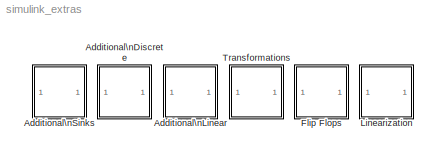
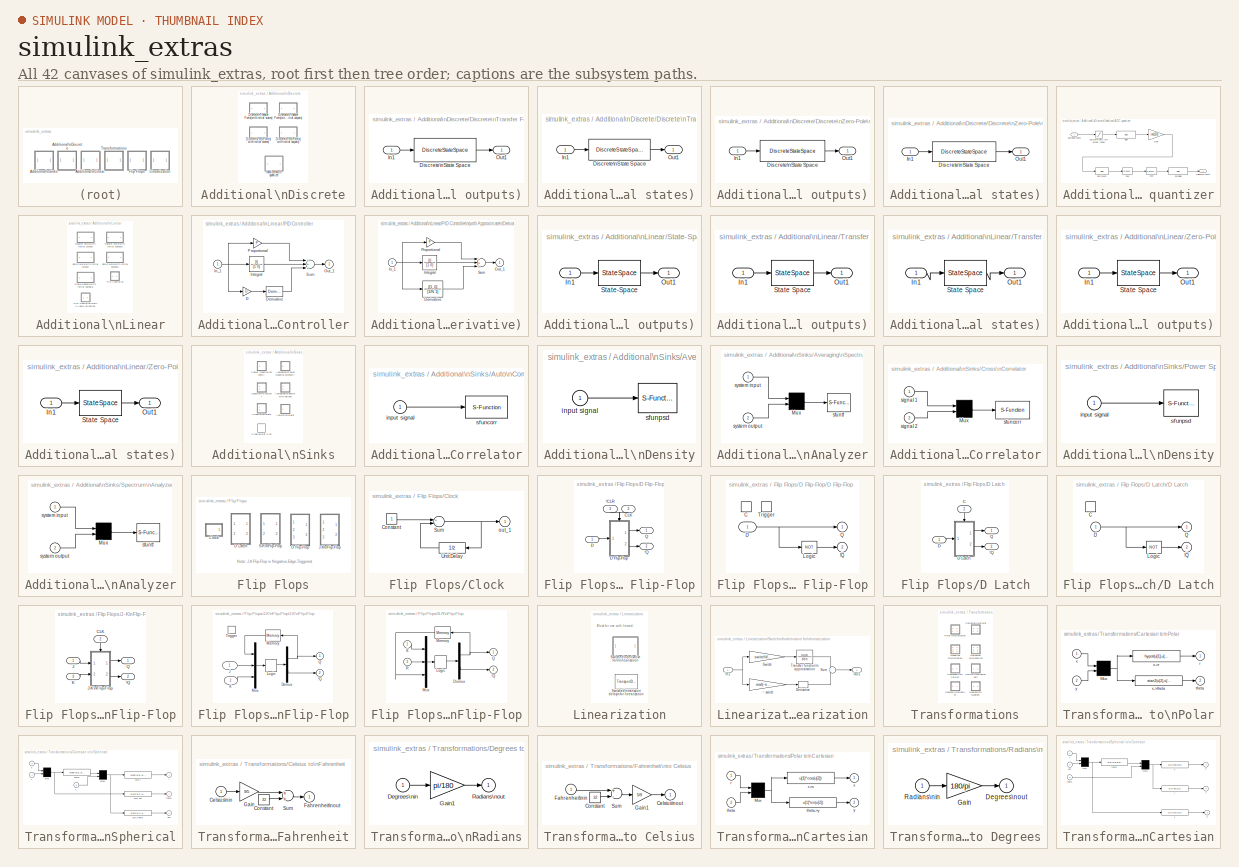
[diagram: thumbnail index - all 42 canvases of the model, root first then tree order]
MODEL simulink_extras
KIND library
CONFIG PostLoadFcn = setsysloc simulink_extras
BLOCK [SubSystem] Additional\nDiscrete
  MaskDisplay = plot([-20 20],[-15 -15],[-15 -15],[-20 20], [ -15  -10  -10 -5 -5  0  0 5 5 10 10 15 15 20],[-10 -10 2  2  13 13 8  8  4  4  1  1  -1 -1])
  MaskIconFrame = on
  MaskIconOpaque = on
  MaskIconRotate = none
  MaskIconUnits = autoscale
  MinAlgLoopOccurrences = off
  Ports = []
  PropExecContextAcrossSSBoundary = on
  RTWSystemCode = Auto
  TreatAsAtomicUnit = off
BLOCK [SubSystem] Additional\nDiscrete/Discrete\nTransfer Fcn\n(with initial outputs)
  MaskCallbackString = ||||
  MaskDescription = Vector expressions for numerator, and denominator. Coefficients are in descending powers of z.
  MaskDisplay = dpoly(N,D,'z')
  MaskEnableString = on,on,on,on,on
  MaskHelp = Specify the initial output for the transfer function.  An optimization routine attempts to determine the appropriate initial states so that the specified initial output is achieved.  For more details, see the m-file getxo.m
  MaskIconFrame = on
  MaskIconOpaque = on
  MaskIconRotate = none
  MaskIconUnits = autoscale
  MaskInitialization = [A,B,C,Dd]=tf2ss(N,D);if (isempty(Y0));[m,n]=size(A);X0=zeros(1,m); end;if (isempty(U0));[m,p]=size(B);U0=zeros(1,p);end;X0=getxo(A,B,C,Dd,U0,Y0,1);
  MaskPromptString = Numerator:|Denominator:|Initial input:|Initial output:|Sample time:
  MaskStyleString = edit,edit,edit,edit,edit
  MaskTabNameString = ,,,,
  MaskToolTipString = on,on,on,on,on
  MaskTunableValueString = on,on,on,on,on
  MaskType = Discrete Transfer Function with Initial Outputs
  MaskValueString = [1]|[1  .5]|[1]|-.5|1
  MaskVarAliasString = ,,,,
  MaskVariables = N=@1;D=@2;U0=@3;Y0=@4;TS=@5;
  MaskVisibilityString = on,on,on,on,on
  MinAlgLoopOccurrences = off
  Ports = [1, 1]
  PropExecContextAcrossSSBoundary = on
  RTWSystemCode = Auto
  TreatAsAtomicUnit = off
BLOCK [DiscreteStateSpace] Additional\nDiscrete/Discrete\nTransfer Fcn\n(with initial outputs)/Discrete\nState Space
  A = A
  B = B
  C = C
  D = Dd
  SampleTime = TS
  X0 = X0
BLOCK [Inport] Additional\nDiscrete/Discrete\nTransfer Fcn\n(with initial outputs)/In1
  IconDisplay = Port number
  LatchInput = off
BLOCK [Outport] Additional\nDiscrete/Discrete\nTransfer Fcn\n(with initial outputs)/Out1
  IconDisplay = Port number
  InitialOutput = 0
BLOCK [SubSystem] Additional\nDiscrete/Discrete\nTransfer Fcn\n(with initial states)
  MaskCallbackString = |||
  MaskDescription = Vector expressions for numerator, and denominator. Coefficients are in descending powers of z.
  MaskDisplay = dpoly(N,D,'z')
  MaskEnableString = on,on,on,on
  MaskHelp = Specify the initial states for the transfer function.  The state ordering is determined by the m-file tf2ss.  There is no unique mapping of the states in a transfer function to states in a state-space representation.  However, tf2ss will consistently use the same mapping for a given transfer function.\n
  MaskIconFrame = on
  MaskIconOpaque = on
  MaskIconRotate = none
  MaskIconUnits = autoscale
  MaskInitialization = [A,B,C,Dd]=tf2ss(N,D);if (isempty(X0));[m,n]=size(A);X0=zeros(1,m); end;
  MaskPromptString = Numerator:|Denominator:|Initial conditions:|Sample time:
  MaskStyleString = edit,edit,edit,edit
  MaskTabNameString = ,,,
  MaskToolTipString = on,on,on,on
  MaskTunableValueString = on,on,on,on
  MaskType = Discrete Transfer Function with Initial States
  MaskValueString = [1]|[1  .5]|[1]|.5
  MaskVarAliasString = ,,,
  MaskVariables = N=@1;D=@2;X0=@3;TS=@4;
  MaskVisibilityString = on,on,on,on
  MinAlgLoopOccurrences = off
  Ports = [1, 1]
  PropExecContextAcrossSSBoundary = on
  RTWSystemCode = Auto
  TreatAsAtomicUnit = off
BLOCK [DiscreteStateSpace] Additional\nDiscrete/Discrete\nTransfer Fcn\n(with initial states)/Discrete\nState Space
  A = A
  B = B
  C = C
  D = Dd
  SampleTime = TS
  X0 = X0
BLOCK [Inport] Additional\nDiscrete/Discrete\nTransfer Fcn\n(with initial states)/In1
  IconDisplay = Port number
  LatchInput = off
BLOCK [Outport] Additional\nDiscrete/Discrete\nTransfer Fcn\n(with initial states)/Out1
  IconDisplay = Port number
  InitialOutput = 0
BLOCK [SubSystem] Additional\nDiscrete/Discrete\nZero-Pole\n(with initial outputs)
  MaskCallbackString = |||||
  MaskDescription = Vector expressions for numerator, denominator, and gain.
  MaskDisplay = droots(Z,P,K,'z')
  MaskEnableString = on,on,on,on,on,on
  MaskHelp = Specify the initial output for the zero-pole-gain system.  An optimization routine attempts to determine the appropriate initial states so that the specified initial output is achieved.  For more details, see the m-file getxo.m
  MaskIconFrame = on
  MaskIconOpaque = on
  MaskIconRotate = none
  MaskIconUnits = autoscale
  MaskInitialization = [A,B,C,D]=zp2ss(Z,P,K);if (isempty(Y0));[m,n]=size(A);X0=zeros(1,m); end;if (isempty(U0));[m,p]=size(B);U0=zeros(1,p);end;X0=getxo(A,B,C,D,U0,Y0,1);
  MaskPromptString = Zeros:|Poles:|Gain:|Initial input:|Initial output:|Sample time:
  MaskStyleString = edit,edit,edit,edit,edit,edit
  MaskTabNameString = ,,,,,
  MaskToolTipString = on,on,on,on,on,on
  MaskTunableValueString = on,on,on,on,on,on
  MaskType = Discrete Zero-Pole with Initial Outputs
  MaskValueString = [1]|[0  .5]|[1]|1|.5|1
  MaskVarAliasString = ,,,,,
  MaskVariables = Z=@1;P=@2;K=@3;U0=@4;Y0=@5;TS=@6;
  MaskVisibilityString = on,on,on,on,on,on
  MinAlgLoopOccurrences = off
  Ports = [1, 1]
  PropExecContextAcrossSSBoundary = on
  RTWSystemCode = Auto
  TreatAsAtomicUnit = off
BLOCK [DiscreteStateSpace] Additional\nDiscrete/Discrete\nZero-Pole\n(with initial outputs)/Discrete\nState Space
  A = A
  B = B
  C = C
  D = D
  SampleTime = TS
  X0 = X0
BLOCK [Inport] Additional\nDiscrete/Discrete\nZero-Pole\n(with initial outputs)/In1
  IconDisplay = Port number
  LatchInput = off
BLOCK [Outport] Additional\nDiscrete/Discrete\nZero-Pole\n(with initial outputs)/Out1
  IconDisplay = Port number
  InitialOutput = 0
BLOCK [SubSystem] Additional\nDiscrete/Discrete\nZero-Pole\n(with initial states)
  MaskCallbackString = ||||
  MaskDescription = Vector expressions for numerator, denominator, and gain.
  MaskDisplay = droots(Z,P,K,'z')
  MaskEnableString = on,on,on,on,on
  MaskHelp = Specify the initial states for the transfer function.  The state ordering is determined by the m-file zp2ss.  There is no unique mapping of the states in a zero-pole-gain representation to states in a state-space representation.  However, zp2ss will consistently use the same mapping for a given transfer function.\n
  MaskIconFrame = on
  MaskIconOpaque = on
  MaskIconRotate = none
  MaskIconUnits = autoscale
  MaskInitialization = [A,B,C,D]=zp2ss(Z,P,K);if (isempty(X0));[m,n]=size(A);X0=zeros(1,m); end;
  MaskPromptString = Zeros:|Poles:|Gain:|Initial conditions:|Sample time:
  MaskStyleString = edit,edit,edit,edit,edit
  MaskTabNameString = ,,,,
  MaskToolTipString = on,on,on,on,on
  MaskTunableValueString = on,on,on,on,on
  MaskType = Discrete Zero-Pole with Initial States
  MaskValueString = [1]|[0  .5]|[1]|1|.5
  MaskVarAliasString = ,,,,
  MaskVariables = Z=@1;P=@2;K=@3;X0=@4;TS=@5;
  MaskVisibilityString = on,on,on,on,on
  MinAlgLoopOccurrences = off
  Ports = [1, 1]
  PropExecContextAcrossSSBoundary = on
  RTWSystemCode = Auto
  TreatAsAtomicUnit = off
BLOCK [DiscreteStateSpace] Additional\nDiscrete/Discrete\nZero-Pole\n(with initial states)/Discrete\nState Space
  A = A
  B = B
  C = C
  D = D
  SampleTime = TS
  X0 = X0
BLOCK [Inport] Additional\nDiscrete/Discrete\nZero-Pole\n(with initial states)/In1
  IconDisplay = Port number
  LatchInput = off
BLOCK [Outport] Additional\nDiscrete/Discrete\nZero-Pole\n(with initial states)/Out1
  IconDisplay = Port number
  InitialOutput = 0
BLOCK [SubSystem] Additional\nDiscrete/Idealized ADC quantizer
  AttributesFormatString = (settings: %<NumberOfConverterBits>-bit converter\\nVmin: %<Vmin>, Vmax: %<Vmax>)
  MaskCallbackString = ||||
  MaskDescription = Idealized quantizer for a linear analog to digital converter.  There are 2^n possible digital output codes for an n-bit converter.   Each value represents an equal fraction of the total analog input range in steps of one least significant bit (1 LSB).  1 LSB is (Vmax - Vmin)/2^bits.  The midpoint of these steps corresponds to the actual value and thus introduce quantization error that is never mor...<+482ch>
  MaskDisplay = plot(steps_x,steps_y)\nplot(line_xy, line_xy)\nport_label('input',1,'A')\nport_label('output',1,'D')\ntext(0.5,0.9,[num2str(NumberOfConverterBits),' bits'],'horizontalalignment','center')
  MaskEnableString = on,on,on,on,on
  MaskHelp = Use this block to model an ideal analog to digital converter.  To model non-ideal converters, it is suggested to use a direct look-up table to represent static errors and dynamic models for transient error sources.  Use a discrete delay of the appropriate duration to model conversion latency if this is a significant value in your application.  If there is an input mux, model this with triggered la...<+43ch>
  MaskIconFrame = on
  MaskIconOpaque = on
  MaskIconRotate = port
  MaskIconUnits = normalized
  MaskInitialization = blk = gcb;\nset_param([blk,'/cast'], 'DataType', OutputDataType);\n\nLSB    = (Vmax - Vmin) / pow2(NumberOfConverterBits);\ninvLSB =  pow2(NumberOfConverterBits) / (Vmax - Vmin);\n\nif OutputNegativeValues ~= 0 && OutputDataType(1) ~= 'u'\n    ZeroBias = -pow2(NumberOfConverterBits-1);\nelse\n	ZeroBias = 0;\nend\n\n% --- icon drawing data\n\nb = 0.10;\nm = 0.20;\nsteps_x = b + m*[0,0.5,0.5,1.5,1.5...<+78ch>
  MaskPromptString = Number of converter bits:|Min input voltage at low output:|Max input voltage at 2^n output (unreachable):|Output data type:|Output negative values
  MaskStyleString = edit,edit,edit,popup(double|single|int8|uint8|int16|uint16|int32|uint32|boolean),checkbox
  MaskTabNameString = ,,,,
  MaskToolTipString = on,on,on,on,on
  MaskTunableValueString = off,off,off,off,off
  MaskType = IdealADC
  MaskValueString = 12|0|5|int16|off
  MaskVarAliasString = ,,,,
  MaskVariables = NumberOfConverterBits=@1;Vmin=@2;Vmax=@3;OutputDataType=&4;OutputNegativeValues=@5;
  MaskVisibilityString = on,on,on,on,on
  MinAlgLoopOccurrences = off
  Ports = [1, 1]
  PropExecContextAcrossSSBoundary = on
  RTWSystemCode = Auto
  TreatAsAtomicUnit = off
BLOCK [Bias] Additional\nDiscrete/Idealized ADC quantizer/Bias
  Bias = -Vmin
  SaturateOnIntegerOverflow = off
BLOCK [Outport] Additional\nDiscrete/Idealized ADC quantizer/Digital\nCounts
  BusOutputAsStruct = off
  IconDisplay = Port number
BLOCK [Gain] Additional\nDiscrete/Idealized ADC quantizer/Gain
  Gain = invLSB
  OutDataTypeMode = Inherit via internal rule
  ParameterDataTypeMode = Inherit via internal rule
  SaturateOnIntegerOverflow = off
BLOCK [Inport] Additional\nDiscrete/Idealized ADC quantizer/Sampled\nVolts
  IconDisplay = Port number
  LatchInput = off
BLOCK [Saturate] Additional\nDiscrete/Idealized ADC quantizer/Saturate volts \nto output range
  AttributesFormatString = Max = %<UpperLimit>\\nMin = %<LowerLimit>
  LowerLimit = Vmin
  UpperLimit = Vmax - (LSB*3/2)
BLOCK [Bias] Additional\nDiscrete/Idealized ADC quantizer/SetRound
  Bias = 0.5
  SaturateOnIntegerOverflow = off
BLOCK [Bias] Additional\nDiscrete/Idealized ADC quantizer/ZeroBias
  Bias = ZeroBias
  SaturateOnIntegerOverflow = off
BLOCK [DataTypeConversion] Additional\nDiscrete/Idealized ADC quantizer/cast
  OutDataTypeMode = int16
  SaturateOnIntegerOverflow = off
BLOCK [Rounding] Additional\nDiscrete/Idealized ADC quantizer/floor
BLOCK [SubSystem] Additional\nLinear
  MaskDisplay = plot([-20 20],[-15 -15],[-15 -15],[-20 20],[-20 20],[-5 18])
  MaskIconFrame = on
  MaskIconOpaque = on
  MaskIconRotate = none
  MaskIconUnits = autoscale
  MinAlgLoopOccurrences = off
  Ports = []
  PropExecContextAcrossSSBoundary = on
  RTWSystemCode = Auto
  TreatAsAtomicUnit = off
BLOCK [SubSystem] Additional\nLinear/PID Controller
  MaskCallbackString = ||
  MaskDescription = Enter expressions for proportional, integral, and derivative terms.\nP+I/s+Ds
  MaskDisplay = disp('PID')
  MaskEnableString = on,on,on
  MaskHelp = This block implements a PID controller where parameters are entered for the Proportional, Integral and Derivative terms. Unmask this block to see how it works. The derivative term is implemented using a true derivative block.
  MaskIconFrame = on
  MaskIconOpaque = on
  MaskIconRotate = none
  MaskIconUnits = autoscale
  MaskPromptString = Proportional:|Integral:|Derivative:
  MaskStyleString = edit,edit,edit
  MaskTabNameString = ,,
  MaskToolTipString = on,on,on
  MaskTunableValueString = on,on,on
  MaskType = PID Controller
  MaskValueString = 1|1|0
  MaskVarAliasString = ,,
  MaskVariables = P=@1;I=@2;D=@3;
  MaskVisibilityString = on,on,on
  MinAlgLoopOccurrences = off
  Ports = [1, 1]
  PropExecContextAcrossSSBoundary = on
  RTWSystemCode = Auto
  TreatAsAtomicUnit = off
BLOCK [Gain] Additional\nLinear/PID Controller/D
  Gain = D
BLOCK [Derivative] Additional\nLinear/PID Controller/Derivative
BLOCK [Inport] Additional\nLinear/PID Controller/In_1
  IconDisplay = Port number
  LatchInput = off
BLOCK [TransferFcn] Additional\nLinear/PID Controller/Integral
  Denominator = [1 0]
  Numerator = [I]
BLOCK [Outport] Additional\nLinear/PID Controller/Out_1
  IconDisplay = Port number
  InitialOutput = 0
BLOCK [Gain] Additional\nLinear/PID Controller/Proportional
  Gain = P
BLOCK [Sum] Additional\nLinear/PID Controller/Sum
  Inputs = +++
  Ports = [3, 1]
BLOCK [SubSystem] Additional\nLinear/PID Controller\n(with Approximate\nDerivative)
  MaskCallbackString = |||
  MaskDescription = Enter Proportional(P), Integral(I), and Derivative(D) and divisor (N) terms.\nP+I/s+Ds/(1/Ns+1)
  MaskDisplay = disp('PID')
  MaskEnableString = on,on,on,on
  MaskHelp = This block implements a PID controller where parameters are entered for the Proportional, Integral and Derivative and divisor terms. Unmask this block to see how it works. The derivative term is implemented using an s/(s/N +1)  transfer function block. Making N large can create a \"stiff\" system.
  MaskIconFrame = on
  MaskIconOpaque = on
  MaskIconRotate = none
  MaskIconUnits = autoscale
  MaskPromptString = Proportional:|Integral:|Derivative:|Derivative divisor(N):
  MaskStyleString = edit,edit,edit,edit
  MaskTabNameString = ,,,
  MaskToolTipString = on,on,on,on
  MaskTunableValueString = on,on,on,on
  MaskType = PID(2) Controller
  MaskValueString = 1|1|0|100
  MaskVarAliasString = ,,,
  MaskVariables = P=@1;I=@2;D=@3;N=@4;
  MaskVisibilityString = on,on,on,on
  MinAlgLoopOccurrences = off
  Ports = [1, 1]
  PropExecContextAcrossSSBoundary = on
  RTWSystemCode = Auto
  TreatAsAtomicUnit = off
BLOCK [TransferFcn] Additional\nLinear/PID Controller\n(with Approximate\nDerivative)/Derivative
  Denominator = [1/N 1]
  Numerator = [D, 0]
BLOCK [Inport] Additional\nLinear/PID Controller\n(with Approximate\nDerivative)/In_1
  IconDisplay = Port number
  LatchInput = off
BLOCK [TransferFcn] Additional\nLinear/PID Controller\n(with Approximate\nDerivative)/Integral
  Denominator = [1 0]
  Numerator = [I]
BLOCK [Outport] Additional\nLinear/PID Controller\n(with Approximate\nDerivative)/Out_1
  IconDisplay = Port number
  InitialOutput = 0
BLOCK [Gain] Additional\nLinear/PID Controller\n(with Approximate\nDerivative)/Proportional
  Gain = P
BLOCK [Sum] Additional\nLinear/PID Controller\n(with Approximate\nDerivative)/Sum
  Inputs = +++
  Ports = [3, 1]
BLOCK [SubSystem] Additional\nLinear/State-Space\n(with initial outputs)
  MaskCallbackString = |||||
  MaskDescription = State-Space model matrices:\ndx/dt = Ax + Bu\ny=Cx +Du
  MaskDisplay = fprintf('x'' = Ax + Bu\\n  y = Cx + Du');
  MaskEnableString = on,on,on,on,on,on
  MaskHelp = Specify an initial output.  An optimization routine is used to attempt to find the steady state x values that satisfy the initial output.  The block states will be initialized to these values.
  MaskIconFrame = on
  MaskIconOpaque = on
  MaskIconRotate = none
  MaskIconUnits = autoscale
  MaskInitialization = if (isempty(Y0));[m,n]=size(A);X0=zeros(1,m); end; if (isempty(U0));[m,p]=size(B);U0=zeros(1,p);end;X0=getxo(A,B,C,D,U0,Y0,0);
  MaskPromptString = A:|B:|C:|D:|Initial inputs:|Initial outputs:
  MaskStyleString = edit,edit,edit,edit,edit,edit
  MaskTabNameString = ,,,,,
  MaskToolTipString = on,on,on,on,on,on
  MaskTunableValueString = on,on,on,on,on,on
  MaskType = State-Space with Initial Outputs
  MaskValueString = [-2.0479 -.4517;-.4517 -3.0295]|[.0591 0]'|[.2641 .8717]|0|1|.5
  MaskVarAliasString = ,,,,,
  MaskVariables = A=@1;B=@2;C=@3;D=@4;U0=@5;Y0=@6;
  MaskVisibilityString = on,on,on,on,on,on
  MinAlgLoopOccurrences = off
  Ports = [1, 1]
  PropExecContextAcrossSSBoundary = on
  RTWSystemCode = Auto
  TreatAsAtomicUnit = off
BLOCK [Inport] Additional\nLinear/State-Space\n(with initial outputs)/In1
  IconDisplay = Port number
  LatchInput = off
BLOCK [Outport] Additional\nLinear/State-Space\n(with initial outputs)/Out1
  IconDisplay = Port number
  InitialOutput = 0
BLOCK [StateSpace] Additional\nLinear/State-Space\n(with initial outputs)/State-Space
  A = A
  B = B
  C = C
  D = D
  X0 = X0
BLOCK [SubSystem] Additional\nLinear/Transfer Fcn\n(with initial outputs)
  MaskCallbackString = |||
  MaskDescription = Vector expressions for numerator, and denominator. Coefficients are in descending powers of s.
  MaskDisplay = dpoly(N,D,'s')
  MaskEnableString = on,on,on,on
  MaskHelp = Specify the initial output for the transfer function.  An optimization routine attempts to determine the appropriate initial states so that the specified initial output is achieved.  For more details, see the m-file getxo.m
  MaskIconFrame = on
  MaskIconOpaque = on
  MaskIconRotate = none
  MaskIconUnits = autoscale
  MaskInitialization = [A,B,C,Dd]=tf2ss(N,D);if (isempty(Y0));[m,n]=size(A);X0=zeros(1,m); end; if (isempty(U0));[m,p]=size(B);U0=zeros(1,p);end;X0=getxo(A,B,C,Dd,U0,Y0,0);\n
  MaskPromptString = Numerator:|Denominator:|Initial output:|Initial input:
  MaskStyleString = edit,edit,edit,edit
  MaskTabNameString = ,,,
  MaskToolTipString = on,on,on,on
  MaskTunableValueString = on,on,on,on
  MaskType = Transfer Function with Initial Outputs
  MaskValueString = [1]|[1  1]|.5|0
  MaskVarAliasString = ,,,
  MaskVariables = N=@1;D=@2;Y0=@3;U0=@4;
  MaskVisibilityString = on,on,on,on
  MinAlgLoopOccurrences = off
  Ports = [1, 1]
  PropExecContextAcrossSSBoundary = on
  RTWSystemCode = Auto
  TreatAsAtomicUnit = off
BLOCK [Inport] Additional\nLinear/Transfer Fcn\n(with initial outputs)/In1
  IconDisplay = Port number
  LatchInput = off
BLOCK [Outport] Additional\nLinear/Transfer Fcn\n(with initial outputs)/Out1
  IconDisplay = Port number
  InitialOutput = 0
BLOCK [StateSpace] Additional\nLinear/Transfer Fcn\n(with initial outputs)/State Space
  A = A
  B = B
  C = C
  D = Dd
  X0 = X0
BLOCK [SubSystem] Additional\nLinear/Transfer Fcn\n(with initial states)
  MaskCallbackString = ||
  MaskDescription = Vector expressions for numerator, and denominator. Coefficients are in descending powers of s.
  MaskDisplay = dpoly(N,D,'s')
  MaskEnableString = on,on,on
  MaskHelp = Specify the initial states for the transfer function.  The state ordering is determined by the m-file tf2ss.  There is no unique mapping of the states in a transfer function to states in a state-space representation.  However, tf2ss will consistently use the same mapping for a given transfer function.\n
  MaskIconFrame = on
  MaskIconOpaque = on
  MaskIconRotate = none
  MaskIconUnits = autoscale
  MaskInitialization = [A,B,C,Dd]=tf2ss(N,D);if (isempty(X0));[m,n]=size(A);X0=zeros(1,m); end;
  MaskPromptString = Numerator:|Denominator:|Initial conditions:
  MaskStyleString = edit,edit,edit
  MaskTabNameString = ,,
  MaskToolTipString = on,on,on
  MaskTunableValueString = on,on,on
  MaskType = Transfer Function with Initial States
  MaskValueString = [1]|[1  1]|.5
  MaskVarAliasString = ,,
  MaskVariables = N=@1;D=@2;X0=@3;
  MaskVisibilityString = on,on,on
  MinAlgLoopOccurrences = off
  Ports = [1, 1]
  PropExecContextAcrossSSBoundary = on
  RTWSystemCode = Auto
  TreatAsAtomicUnit = off
BLOCK [Inport] Additional\nLinear/Transfer Fcn\n(with initial states)/In1
  IconDisplay = Port number
  LatchInput = off
BLOCK [Outport] Additional\nLinear/Transfer Fcn\n(with initial states)/Out1
  IconDisplay = Port number
  InitialOutput = 0
BLOCK [StateSpace] Additional\nLinear/Transfer Fcn\n(with initial states)/State Space
  A = A
  B = B
  C = C
  D = Dd
  X0 = X0
BLOCK [SubSystem] Additional\nLinear/Zero-Pole\n(with initial outputs)
  MaskCallbackString = ||||
  MaskDescription = Vector expressions for numerator, denominator, and gain.
  MaskDisplay = droots(Z,P,K)
  MaskEnableString = on,on,on,on,on
  MaskHelp = Specify the initial output for the zero-pole-gain system.  An optimization routine attempts to determine the appropriate initial states so that the specified initial output is achieved.  For more details, see the m-file getxo.m
  MaskIconFrame = on
  MaskIconOpaque = on
  MaskIconRotate = none
  MaskIconUnits = autoscale
  MaskInitialization = [A,B,C,D]=zp2ss(Z,P,K);if (isempty(Y0));[m,n]=size(A);X0=zeros(1,m); end; if (isempty(U0));[m,p]=size(B);U0=zeros(1,p);end;X0=getxo(A,B,C,D,U0,Y0,0);
  MaskPromptString = Zeros:|Poles:|Gain:|Initial output:|Initial input:
  MaskStyleString = edit,edit,edit,edit,edit
  MaskTabNameString = ,,,,
  MaskToolTipString = on,on,on,on,on
  MaskTunableValueString = on,on,on,on,on
  MaskType = Zero-Pole with Initial Outputs
  MaskValueString = [1]|[0; -1]|[1]|.5|0
  MaskVarAliasString = ,,,,
  MaskVariables = Z=@1;P=@2;K=@3;Y0=@4;U0=@5;
  MaskVisibilityString = on,on,on,on,on
  MinAlgLoopOccurrences = off
  Ports = [1, 1]
  PropExecContextAcrossSSBoundary = on
  RTWSystemCode = Auto
  TreatAsAtomicUnit = off
BLOCK [Inport] Additional\nLinear/Zero-Pole\n(with initial outputs)/In1
  IconDisplay = Port number
  LatchInput = off
BLOCK [Outport] Additional\nLinear/Zero-Pole\n(with initial outputs)/Out1
  IconDisplay = Port number
  InitialOutput = 0
BLOCK [StateSpace] Additional\nLinear/Zero-Pole\n(with initial outputs)/State Space
  A = A
  B = B
  C = C
  D = D
  X0 = X0
BLOCK [SubSystem] Additional\nLinear/Zero-Pole\n(with initial states)
  MaskCallbackString = |||
  MaskDescription = Vector expressions for numerator, denominator, and gain.
  MaskDisplay = droots(Z,P,K)
  MaskEnableString = on,on,on,on
  MaskHelp = Specify the initial states for the transfer function.  The state ordering is determined by the m-file zp2ss.  There is no unique mapping of the states in a zero-pole-gain representation to states in a state-space representation.  However, zp2ss will consistently use the same mapping for a given transfer function.
  MaskIconFrame = on
  MaskIconOpaque = on
  MaskIconRotate = none
  MaskIconUnits = autoscale
  MaskInitialization = [A,B,C,D]=zp2ss(Z,P,K);if (isempty(X0));[m,n]=size(A);X0=zeros(1,m); end;
  MaskPromptString = Zeros:|Poles:|Gain:|Initial conditions:
  MaskStyleString = edit,edit,edit,edit
  MaskTabNameString = ,,,
  MaskToolTipString = on,on,on,on
  MaskTunableValueString = on,on,on,on
  MaskType = Zero-Pole with Initial States
  MaskValueString = [1]|[0; -1]|[1]|.5
  MaskVarAliasString = ,,,
  MaskVariables = Z=@1;P=@2;K=@3;X0=@4;
  MaskVisibilityString = on,on,on,on
  MinAlgLoopOccurrences = off
  Ports = [1, 1]
  PropExecContextAcrossSSBoundary = on
  RTWSystemCode = Auto
  TreatAsAtomicUnit = off
BLOCK [Inport] Additional\nLinear/Zero-Pole\n(with initial states)/In1
  IconDisplay = Port number
  LatchInput = off
BLOCK [Outport] Additional\nLinear/Zero-Pole\n(with initial states)/Out1
  IconDisplay = Port number
  InitialOutput = 0
BLOCK [StateSpace] Additional\nLinear/Zero-Pole\n(with initial states)/State Space
  A = A
  B = B
  C = C
  D = D
  X0 = X0
BLOCK [SubSystem] Additional\nSinks
  MaskDisplay = plot([-1 1 1 -1 1],[ 1 -1 1 -1 1],[14 4 11 4 6],[14 4 6 4 11],[14 4 11 4 6],[-14 -4 -6 -4 -11],[-14 -4 -11 -4 -6],[14 4 6 4 11],[-14 -4 -11 -4 -6],[-14 -4 -6 -4 -11],\n[0 0 3 0 -3],[-20 -5 -10 -5 -10],[0 0 3 0 -3],[20 5 10 5 10],[20 5 10 5 10],[0 0 3 0 -3],[-20 -5 -10 -5 -10],[0 0 3 0 -3])
  MaskIconFrame = on
  MaskIconOpaque = on
  MaskIconRotate = none
  MaskIconUnits = autoscale
  MinAlgLoopOccurrences = off
  Ports = []
  PropExecContextAcrossSSBoundary = on
  RTWSystemCode = Auto
  TreatAsAtomicUnit = off
BLOCK [SubSystem] Additional\nSinks/Auto\nCorrelator
  CopyFcn = sfuncorr([],[],[],'CopyBlock')
  DeleteFcn = sfuncorr([],[],[],'DeleteBlock')
  LoadFcn = sfuncorr([],[],[],'LoadBlock')
  MaskCallbackString = ||
  MaskDescription = Plots the auto correlation of the input.\nRequires signal processing toolbox.
  MaskDisplay = plot(0,0,100,100,[11,93,93,11,11],[90,90,40,40,90],[80,60,40,20],[50,79,50,80])
  MaskEnableString = on,on,on
  MaskHelp = This block when hooked to the output of a system displays the auto correlation of the buffer in the graph window. For more see the M-file sfuncorr.
  MaskIconFrame = on
  MaskIconOpaque = on
  MaskIconRotate = none
  MaskIconUnits = autoscale
  MaskInitialization = ts=sampleT(1); if length(sampleT) > 1, offset = sampleT(2);, else, offset = 0; end
  MaskPromptString = Length of buffer:|Plot after how many points:|Sample time:
  MaskSelfModifiable = on
  MaskStyleString = edit,edit,edit
  MaskTabNameString = ,,
  MaskToolTipString = on,on,on
  MaskTunableValueString = on,on,on
  MaskType = Auto Correlator
  MaskValueString = 100|50|0.1
  MaskVarAliasString = ,,
  MaskVariables = npts=@1;HowOften=@2;sampleT=@3;
  MaskVisibilityString = on,on,on
  MinAlgLoopOccurrences = off
  NameChangeFcn = sfuncorr([],[],[],'NameChange')
  Ports = [1]
  PropExecContextAcrossSSBoundary = on
  RTWSystemCode = Auto
  StartFcn = sfuncorr([],[],[],'Start')
  TreatAsAtomicUnit = off
BLOCK [Inport] Additional\nSinks/Auto\nCorrelator/input signal
  IconDisplay = Port number
  LatchInput = off
BLOCK [S-Function] Additional\nSinks/Auto\nCorrelator/sfuncorr
  FunctionName = sfuncorr
  Parameters = npts,HowOften,offset,ts,0,'unbiased'
  Ports = [1, 1]
BLOCK [SubSystem] Additional\nSinks/Averaging\nPower Spectral\nDensity
  CopyFcn = sfunpsd([],[],[],'CopyBlock')
  DeleteFcn = sfunpsd([],[],[],'DeleteBlock')
  LoadFcn = sfunpsd([],[],[],'LoadBlock')
  MaskCallbackString = |||
  MaskDescription = Plots the averaged PSD of the input.
  MaskDisplay = plot(0,0,100,100,[11,92,92,11,11],[90,90,40,40,90],[82,76,65,57,51,44,35,30,25,20],[65,62,59,63,66,66,67,70,55,50])
  MaskEnableString = on,on,on,on
  MaskHelp = This block when hooked to the output of a system displays the frequency content of the buffer in the graph window. For more see the M-file sfunpsd.
  MaskIconFrame = on
  MaskIconOpaque = on
  MaskIconRotate = none
  MaskIconUnits = autoscale
  MaskInitialization = ts=sampleT(1); if length(sampleT) > 1, offset = sampleT(2);, else, offset = 0; end
  MaskPromptString = Length of buffer:|Number of points for fft:|Plot after how many points:|Sample time:
  MaskSelfModifiable = on
  MaskStyleString = edit,edit,edit,edit
  MaskTabNameString = ,,,
  MaskToolTipString = on,on,on,on
  MaskTunableValueString = on,on,on,on
  MaskType = Averaging Power Spectral Density
  MaskValueString = 128|512|64|0.1
  MaskVarAliasString = ,,,
  MaskVariables = npts=@1;fftpts=@2;HowOften=@3;sampleT=@4;
  MaskVisibilityString = on,on,on,on
  MinAlgLoopOccurrences = off
  NameChangeFcn = sfunpsd([],[],[],'NameChange')
  Ports = [1]
  PropExecContextAcrossSSBoundary = on
  RTWSystemCode = Auto
  StartFcn = sfunpsd([],[],[],'Start')
  TreatAsAtomicUnit = off
BLOCK [Inport] Additional\nSinks/Averaging\nPower Spectral\nDensity/input signal
  IconDisplay = Port number
  LatchInput = off
BLOCK [S-Function] Additional\nSinks/Averaging\nPower Spectral\nDensity/sfunpsd
  FunctionName = sfunpsd
  Parameters = fftpts,npts,HowOften,offset,ts,1
  Ports = [1, 1]
BLOCK [SubSystem] Additional\nSinks/Averaging\nSpectrum\nAnalyzer
  MaskCallbackString = |||
  MaskDescription = Implements an Averaging Spectrum analyzer.\nHook input 1 to system input.\nHook input 2 to system output.
  MaskDisplay = plot(0,0,100,100,[12,92,92,12,12],[90,90,40,40,90],[80,72,63,54,47,40,32,20],[61,61,62,65,69,73,75,75])
  MaskEnableString = on,on,on,on
  MaskHelp = Hook the system's input to the first port of this block and the system's output to second port. Results are displayed as the frequency response of this system. Use signals with high harmonic content for best results.
  MaskIconFrame = on
  MaskIconOpaque = on
  MaskIconRotate = none
  MaskIconUnits = autoscale
  MaskInitialization = ts=sampleT(1); if length(sampleT) > 1, offset = sampleT(2);, else, offset = 0; end
  MaskPromptString = Length of buffer:|Number of points for fft:|Plot after how many points:|Sample time:
  MaskStyleString = edit,edit,edit,edit
  MaskTabNameString = ,,,
  MaskToolTipString = on,on,on,on
  MaskTunableValueString = on,on,on,on
  MaskType = Averaging Spectrum Analyzer
  MaskValueString = 256|256|64|0.1
  MaskVarAliasString = ,,,
  MaskVariables = npts=@1;fftpts=@2;HowOften=@3;sampleT=@4;
  MaskVisibilityString = on,on,on,on
  MinAlgLoopOccurrences = off
  Ports = [2]
  PropExecContextAcrossSSBoundary = on
  RTWSystemCode = Auto
  TreatAsAtomicUnit = off
BLOCK [Mux] Additional\nSinks/Averaging\nSpectrum\nAnalyzer/Mux
  Inputs = 2
  Ports = [2, 1]
BLOCK [S-Function] Additional\nSinks/Averaging\nSpectrum\nAnalyzer/sfuntf
  FunctionName = sfuntf
  Parameters = fftpts,npts,HowOften,offset,ts,1
  Ports = [1, 1]
BLOCK [Inport] Additional\nSinks/Averaging\nSpectrum\nAnalyzer/system input
  IconDisplay = Port number
  LatchInput = off
BLOCK [Inport] Additional\nSinks/Averaging\nSpectrum\nAnalyzer/system output
  IconDisplay = Port number
  LatchInput = off
  Port = 2
BLOCK [SubSystem] Additional\nSinks/Cross\nCorrelator
  CopyFcn = sfuncorr([],[],[],'CopyBlock')
  DeleteFcn = sfuncorr([],[],[],'DeleteBlock')
  LoadFcn = sfuncorr([],[],[],'LoadBlock')
  MaskCallbackString = ||
  MaskDescription = Plots the cross correlation of the input signals.\nRequires signal processing toolbox.
  MaskDisplay = plot(0,0,100,100,[10,92,92,10,10],[90,90,40,40,90],[80,59,40,20],[70,79,70,79],[79,70,59,51,40,30,21],[60,51,60,50,60,50,60])
  MaskEnableString = on,on,on
  MaskHelp = This block when hooked to the outputs of a system displays the cross correlation of the buffer in the graph window. For more see the M-file sfuncorr.
  MaskIconFrame = on
  MaskIconOpaque = on
  MaskIconRotate = none
  MaskIconUnits = autoscale
  MaskInitialization = ts=sampleT(1); if length(sampleT) > 1, offset = sampleT(2);, else, offset = 0; end
  MaskPromptString = Length of buffer:|Plot after how many points:|Sample time:
  MaskSelfModifiable = on
  MaskStyleString = edit,edit,edit
  MaskTabNameString = ,,
  MaskToolTipString = on,on,on
  MaskTunableValueString = on,on,on
  MaskType = Cross Correlator
  MaskValueString = 100|50|0.1
  MaskVarAliasString = ,,
  MaskVariables = npts=@1;HowOften=@2;sampleT=@3;
  MaskVisibilityString = on,on,on
  MinAlgLoopOccurrences = off
  NameChangeFcn = sfuncorr([],[],[],'NameChange')
  Ports = [2]
  PropExecContextAcrossSSBoundary = on
  RTWSystemCode = Auto
  StartFcn = sfuncorr([],[],[],'Start')
  TreatAsAtomicUnit = off
BLOCK [Mux] Additional\nSinks/Cross\nCorrelator/Mux
  Inputs = 2
  Ports = [2, 1]
BLOCK [S-Function] Additional\nSinks/Cross\nCorrelator/sfuncorr
  FunctionName = sfuncorr
  Parameters = npts,HowOften,offset,ts,1,'unbiased'
  Ports = [1, 1]
BLOCK [Inport] Additional\nSinks/Cross\nCorrelator/signal 1
  IconDisplay = Port number
  LatchInput = off
BLOCK [Inport] Additional\nSinks/Cross\nCorrelator/signal 2
  IconDisplay = Port number
  LatchInput = off
  Port = 2
BLOCK [S-Function] Additional\nSinks/Floating Bar Plot
  DeleteFcn = barplotm([],'DeleteFcn')
  FunctionName = barplot
  MaskDescription = Displays selected signals as bar plot while the simulation is running (i.e., click on signal lines to see their values displayed).  To select multiple signals use shift-click.  Each signal is displayed in its own axes, using the corresponding set of Y-Limits.
  MaskDisplay = plot(x,y);
  MaskEnableString = on
  MaskHelp = Displays selected signal values (click on signal) as bar plot while the simulation is running.  To select multiple signals use shift-click.  Each signal (selected line) is displayed in it's own axes.  The 1stY-Limits pair is used for the 1st axes, the 2nd for the 2nd axes, etc.   If there are more axes, than Y-Limits pairs, the last Y-Limits pair is used.
  MaskIconFrame = on
  MaskIconOpaque = on
  MaskIconRotate = none
  MaskIconUnits = normalized
  MaskInitialization = x=[0.1 0.1 0.2 0.2 0.3 0.3 0.4 0.4 0.5 0.5 0.6 0.6 0.7 0.7 0.8 0.8 0.1];\ny=[0.0 0.6 0.6 0.0 0.0 0.8 0.8 0.0 0.0 0.9 0.9 0.0 0.0 0.4 0.4 0.0 0.0];\n
  MaskPromptString = Y-Limits
  MaskStyleString = edit
  MaskToolTipString = on
  MaskTunableValueString = on
  MaskType = Floating Bar Plot
  MaskValueString = [-6 6  -5 5  -5 5  -5 5  -5 5  -5 5  -5 5  -5 5  -5 5  -5 5  -5 5]
  MaskVariables = yLim=@1;
  MaskVisibilityString = on
  NameChangeFcn = barplotm([],'NameChangeFcn')
  Parameters = yLim
  Ports = []
BLOCK [SubSystem] Additional\nSinks/Power Spectral\nDensity
  CopyFcn = sfunpsd([],[],[],'CopyBlock')
  DeleteFcn = sfunpsd([],[],[],'DeleteBlock')
  LoadFcn = sfunpsd([],[],[],'LoadBlock')
  MaskCallbackString = |||
  MaskDescription = Plot the PSD of the input.
  MaskDisplay = plot(0,0,100,100,[14,91,91,14,14],[86,86,40,40,86],[85,82,80,79,75,67,63,60,57,53,41,36,33,27,24],[49,50,53,50,49,51,54,66,54,50,50,52,81,51,49])
  MaskEnableString = on,on,on,on
  MaskHelp = This block when hooked to the output of a system displays the frequency content of the buffer in the graph window. For more see the M-file sfunpsd.
  MaskIconFrame = on
  MaskIconOpaque = on
  MaskIconRotate = none
  MaskIconUnits = autoscale
  MaskInitialization = ts=sampleT(1); if length(sampleT) > 1, offset = sampleT(2);, else, offset = 0; end
  MaskPromptString = Length of buffer:|Number of points for fft:|Plot after how many points:|Sample time:
  MaskSelfModifiable = on
  MaskStyleString = edit,edit,edit,edit
  MaskTabNameString = ,,,
  MaskToolTipString = on,on,on,on
  MaskTunableValueString = on,on,on,on
  MaskType = Power Spectral Density
  MaskValueString = 128|512|64|0.1
  MaskVarAliasString = ,,,
  MaskVariables = npts=@1;fftpts=@2;HowOften=@3;sampleT=@4;
  MaskVisibilityString = on,on,on,on
  MinAlgLoopOccurrences = off
  NameChangeFcn = sfunpsd([],[],[],'NameChange')
  Ports = [1]
  PropExecContextAcrossSSBoundary = on
  RTWSystemCode = Auto
  StartFcn = sfunpsd([],[],[],'Start')
  TreatAsAtomicUnit = off
BLOCK [Inport] Additional\nSinks/Power Spectral\nDensity/input signal
  IconDisplay = Port number
  LatchInput = off
BLOCK [S-Function] Additional\nSinks/Power Spectral\nDensity/sfunpsd
  FunctionName = sfunpsd
  Parameters = fftpts,npts,HowOften,offset,ts,0
  Ports = [1, 1]
BLOCK [SubSystem] Additional\nSinks/Spectrum\nAnalyzer
  MaskCallbackString = |||
  MaskDescription = Implements a Spectrum Analyzer.\nHook input 1 to system input.\nHook input 2 to system output.
  MaskDisplay = plot(0,0,100,100,[11,93,93,11,11],[90,90,40,40,90],[90,80,72,64,55,45,41,36,20],[50,50,52,59,67,75,78,80,80])
  MaskEnableString = on,on,on,on
  MaskHelp = Hook the system's input to the first port of this block and the system's output to second port. Results are displayed as the frequency response of this system. Use signals with high harmonic content for best results.
  MaskIconFrame = on
  MaskIconOpaque = on
  MaskIconRotate = none
  MaskIconUnits = autoscale
  MaskInitialization = ts=sampleT(1); if length(sampleT) > 1, offset = sampleT(2);, else, offset = 0; end
  MaskPromptString = Length of buffer:|Number of points for fft:|Plot after how many points:|Sample time:
  MaskStyleString = edit,edit,edit,edit
  MaskTabNameString = ,,,
  MaskToolTipString = on,on,on,on
  MaskTunableValueString = on,on,on,on
  MaskType = Spectrum Analyzer
  MaskValueString = 256|256|64|0.1
  MaskVarAliasString = ,,,
  MaskVariables = npts=@1;fftpts=@2;HowOften=@3;sampleT=@4;
  MaskVisibilityString = on,on,on,on
  MinAlgLoopOccurrences = off
  Ports = [2]
  PropExecContextAcrossSSBoundary = on
  RTWSystemCode = Auto
  TreatAsAtomicUnit = off
BLOCK [Mux] Additional\nSinks/Spectrum\nAnalyzer/Mux
  Inputs = 2
  Ports = [2, 1]
BLOCK [S-Function] Additional\nSinks/Spectrum\nAnalyzer/sfuntf
  FunctionName = sfuntf
  Parameters = fftpts,npts,HowOften,offset,ts,0
  Ports = [1, 1]
BLOCK [Inport] Additional\nSinks/Spectrum\nAnalyzer/system input
  IconDisplay = Port number
  LatchInput = off
BLOCK [Inport] Additional\nSinks/Spectrum\nAnalyzer/system output
  IconDisplay = Port number
  LatchInput = off
  Port = 2
BLOCK [SubSystem] Flip Flops
  MinAlgLoopOccurrences = off
  Ports = []
  PropExecContextAcrossSSBoundary = on
  RTWSystemCode = Auto
  TreatAsAtomicUnit = off
BLOCK [SubSystem] Flip Flops/Clock
  MaskDescription = Digital clock.\nOutput is set to 1 for the first half of the period.
  MaskDisplay = plot(0,0,100,100,[90,75,75,60,60,35,35,20,20,10],[20,20,80,80,19,20,80,80,20,20])
  MaskEnableString = on
  MaskHelp = Digital clock for logic systems.
  MaskIconFrame = on
  MaskIconOpaque = on
  MaskIconRotate = none
  MaskIconUnits = autoscale
  MaskInitialization = duration = @1/2;
  MaskPromptString = Period:
  MaskStyleString = edit
  MaskToolTipString = on
  MaskTunableValueString = on
  MaskType = Digital clock
  MaskValueString = 2
  MaskVisibilityString = on
  MinAlgLoopOccurrences = off
  Ports = [0, 1]
  PropExecContextAcrossSSBoundary = on
  RTWSystemCode = Auto
  TreatAsAtomicUnit = off
BLOCK [Constant] Flip Flops/Clock/Constant
BLOCK [Sum] Flip Flops/Clock/Sum
  Inputs = +-
  Ports = [2, 1]
BLOCK [UnitDelay] Flip Flops/Clock/Unit Delay
  SampleTime = duration
BLOCK [Outport] Flip Flops/Clock/out_1
  IconDisplay = Port number
  InitialOutput = 0
BLOCK [SubSystem] Flip Flops/D Flip-Flop
  MaskDescription = D Flip-Flop Block
  MaskHelp = The D flip-flop block has the following characteristic table:\n<pre>\n  Q(t)  D(t)     Q(tnext)\n  ------------------------\n   0      0       0\n   0      1       1\n   1      0       0\n   1      1       1\n</pre>\nQ(tnext) refers to the output on a clock pulse (CLK) rising edge and when the\nchip is enabled (!CLR ~= 0).\n<br><br>\nThe D flip-flop transfers \"data\" into a memory element (flip-f...<+212ch>
  MaskIconFrame = on
  MaskIconOpaque = on
  MaskIconRotate = none
  MaskIconUnits = autoscale
  MaskType = DFlipFlop
  MinAlgLoopOccurrences = off
  Ports = [3, 2]
  PropExecContextAcrossSSBoundary = on
  RTWSystemCode = Auto
  TreatAsAtomicUnit = off
BLOCK [Inport] Flip Flops/D Flip-Flop/!CLR
  IconDisplay = Port number
  LatchInput = off
  Port = 3
BLOCK [Outport] Flip Flops/D Flip-Flop/!Q
  IconDisplay = Port number
  InitialOutput = 1
  Port = 2
BLOCK [Inport] Flip Flops/D Flip-Flop/CLK
  IconDisplay = Port number
  LatchInput = off
  Port = 2
BLOCK [Inport] Flip Flops/D Flip-Flop/D
  IconDisplay = Port number
  LatchInput = off
BLOCK [SubSystem] Flip Flops/D Flip-Flop/D Flip-Flop
  MinAlgLoopOccurrences = off
  Ports = [1, 2, 1, 1]
  PropExecContextAcrossSSBoundary = on
  RTWSystemCode = Auto
  TreatAsAtomicUnit = on
BLOCK [Outport] Flip Flops/D Flip-Flop/D Flip-Flop/!Q
  IconDisplay = Port number
  InitialOutput = 1
  OutputWhenDisabled = reset
  Port = 2
BLOCK [EnablePort] Flip Flops/D Flip-Flop/D Flip-Flop/C
  Ports = []
BLOCK [Inport] Flip Flops/D Flip-Flop/D Flip-Flop/D
  IconDisplay = Port number
  LatchInput = on
BLOCK [Logic] Flip Flops/D Flip-Flop/D Flip-Flop/Logic
  Inputs = 1
  Operator = NOT
  Ports = [1, 1]
BLOCK [Outport] Flip Flops/D Flip-Flop/D Flip-Flop/Q
  IconDisplay = Port number
  InitialOutput = 0
  OutputWhenDisabled = reset
BLOCK [TriggerPort] Flip Flops/D Flip-Flop/D Flip-Flop/Trigger
  Ports = []
  StatesWhenEnabling = reset
BLOCK [Outport] Flip Flops/D Flip-Flop/Q
  IconDisplay = Port number
  InitialOutput = 0
BLOCK [SubSystem] Flip Flops/D Latch
  MaskDescription = D Latch Flip-Flop Block
  MaskHelp = The D latch flip-flop block has the following characteristic table:\n<pre>\n  Q(t)  D(t)     Q(tnext)\n  ------------------------\n   0      0       0\n   0      1       1\n   1      0       0\n   1      1       1\n</pre>\nThe D latch transfers \"data\" into a memory element (flip-flop).  The D latch\nflip-flop is sometimes called a gated D-latch. The chip enable input signal, C,\nis sometimes giv...<+126ch>
  MaskIconFrame = on
  MaskIconOpaque = on
  MaskIconRotate = none
  MaskIconUnits = autoscale
  MaskType = DLatch
  MinAlgLoopOccurrences = off
  Ports = [2, 2]
  PropExecContextAcrossSSBoundary = on
  RTWSystemCode = Auto
  TreatAsAtomicUnit = off
BLOCK [Outport] Flip Flops/D Latch/!Q
  IconDisplay = Port number
  InitialOutput = 1
  Port = 2
BLOCK [Inport] Flip Flops/D Latch/C
  IconDisplay = Port number
  LatchInput = off
  Port = 2
BLOCK [Inport] Flip Flops/D Latch/D
  IconDisplay = Port number
  LatchInput = off
BLOCK [SubSystem] Flip Flops/D Latch/D Latch
  MinAlgLoopOccurrences = off
  Ports = [1, 2, 1]
  PropExecContextAcrossSSBoundary = on
  RTWSystemCode = Auto
  TreatAsAtomicUnit = on
BLOCK [Outport] Flip Flops/D Latch/D Latch/!Q
  IconDisplay = Port number
  InitialOutput = 1
  Port = 2
BLOCK [EnablePort] Flip Flops/D Latch/D Latch/C
  Ports = []
BLOCK [Inport] Flip Flops/D Latch/D Latch/D
  IconDisplay = Port number
  LatchInput = off
BLOCK [Logic] Flip Flops/D Latch/D Latch/Logic
  Inputs = 1
  Operator = NOT
  Ports = [1, 1]
BLOCK [Outport] Flip Flops/D Latch/D Latch/Q
  IconDisplay = Port number
  InitialOutput = 0
BLOCK [Outport] Flip Flops/D Latch/Q
  IconDisplay = Port number
  InitialOutput = 0
BLOCK [SubSystem] Flip Flops/J-K\nFlip-Flop
  MaskDescription = J-K Flip-Flop Block (Negative Edge Triggered)
  MaskEnableString = on
  MaskHelp = The J-K flip-flop block has the following characteristic table\n<pre>\n  Q(t)  J(t)  K(t)   Q(tnext)\n  ---------------------------\n   0     0     0      0\n   0     0     1      0\n   0     1     0      1\n   0     1     1      1\n   1     0     0      1\n   1     0     1      0\n   1     1     0      1\n   1     1     1      0\n</pre>\nThe JK flip-flop transfers \"data\" into a memory element (...<+138ch>
  MaskIconFrame = on
  MaskIconOpaque = on
  MaskIconRotate = none
  MaskIconUnits = autoscale
  MaskPromptString = Initial condition (state of Q):
  MaskStyleString = edit
  MaskToolTipString = on
  MaskTunableValueString = on
  MaskType = JKFlipFlop
  MaskValueString = 0
  MaskVariables = initial_condition=@1;
  MaskVisibilityString = on
  MinAlgLoopOccurrences = off
  Ports = [3, 2]
  PropExecContextAcrossSSBoundary = on
  RTWSystemCode = Auto
  TreatAsAtomicUnit = off
BLOCK [Outport] Flip Flops/J-K\nFlip-Flop/!Q
  IconDisplay = Port number
  Port = 2
BLOCK [Inport] Flip Flops/J-K\nFlip-Flop/CLK
  IconDisplay = Port number
  LatchInput = off
  Port = 2
BLOCK [Inport] Flip Flops/J-K\nFlip-Flop/J
  IconDisplay = Port number
  LatchInput = off
BLOCK [SubSystem] Flip Flops/J-K\nFlip-Flop/J-K\nFlip-Flop
  MinAlgLoopOccurrences = off
  Ports = [2, 2, 0, 1]
  PropExecContextAcrossSSBoundary = on
  RTWSystemCode = Auto
  TreatAsAtomicUnit = on
BLOCK [Outport] Flip Flops/J-K\nFlip-Flop/J-K\nFlip-Flop/!Q
  IconDisplay = Port number
  InitialOutput = ~initial_condition
  Port = 2
BLOCK [Demux] Flip Flops/J-K\nFlip-Flop/J-K\nFlip-Flop/Demux
  Outputs = 2
  Ports = [1, 2]
BLOCK [Inport] Flip Flops/J-K\nFlip-Flop/J-K\nFlip-Flop/J
  IconDisplay = Port number
  LatchInput = on
BLOCK [Inport] Flip Flops/J-K\nFlip-Flop/J-K\nFlip-Flop/K
  IconDisplay = Port number
  LatchInput = on
  Port = 2
BLOCK [CombinatorialLogic] Flip Flops/J-K\nFlip-Flop/J-K\nFlip-Flop/Logic
  TruthTable = [0 1; 0 1; 1 0; 1 0; 1 0; 0 1; 1 0; 0 1]
BLOCK [Memory] Flip Flops/J-K\nFlip-Flop/J-K\nFlip-Flop/Memory
  InheritSampleTime = on
  X0 = initial_condition
BLOCK [Mux] Flip Flops/J-K\nFlip-Flop/J-K\nFlip-Flop/Mux
  DisplayOption = bar
  Inputs = 3
  Ports = [3, 1]
BLOCK [Outport] Flip Flops/J-K\nFlip-Flop/J-K\nFlip-Flop/Q
  IconDisplay = Port number
  InitialOutput = initial_condition
BLOCK [TriggerPort] Flip Flops/J-K\nFlip-Flop/J-K\nFlip-Flop/Trigger
  Ports = []
  StatesWhenEnabling = reset
  TriggerType = falling
BLOCK [Inport] Flip Flops/J-K\nFlip-Flop/K
  IconDisplay = Port number
  LatchInput = off
  Port = 3
BLOCK [Outport] Flip Flops/J-K\nFlip-Flop/Q
  IconDisplay = Port number
BLOCK [SubSystem] Flip Flops/S-R\nFlip-Flop
  MaskDescription = S-R Flip-Flop Block\n
  MaskEnableString = on
  MaskHelp = The S-R flip-flop also known as a set-reset flip-flop. This implementation\nis modeled after an S-R flip-flop constructed using NOR gates. The \ntruth table for this block is:\n<pre>\n S  R   Q  !Q\n ----------------\n 1  0   1  0\n 0  0   1  0  (after S == 1, R == 0)\n 0  1   0  1\n 0  0   0  1  (after S == 0, R == 1)\n 1  1   0  0\n</pre>\n\nIn an S-R flip-flop that is implemented with NOR gates...<+378ch>
  MaskIconFrame = on
  MaskIconOpaque = on
  MaskIconRotate = none
  MaskIconUnits = autoscale
  MaskPromptString = Initial condition (state of Q):
  MaskStyleString = edit
  MaskToolTipString = on
  MaskTunableValueString = on
  MaskType = SRFlipFlop
  MaskValueString = 0
  MaskVariables = initial_condition=@1;
  MaskVisibilityString = on
  MinAlgLoopOccurrences = off
  Ports = [2, 2]
  PropExecContextAcrossSSBoundary = on
  RTWSystemCode = Auto
  TreatAsAtomicUnit = off
BLOCK [Outport] Flip Flops/S-R\nFlip-Flop/!Q
  IconDisplay = Port number
  InitialOutput = 1
  Port = 2
BLOCK [Demux] Flip Flops/S-R\nFlip-Flop/Demux
  Outputs = 2
  Ports = [1, 2]
BLOCK [CombinatorialLogic] Flip Flops/S-R\nFlip-Flop/Logic
  TruthTable = [0 1;1 0;0 1;0 1;1 0;1 0;0 0;0 0]
BLOCK [Memory] Flip Flops/S-R\nFlip-Flop/Memory
  InheritSampleTime = on
  X0 = initial_condition
BLOCK [Mux] Flip Flops/S-R\nFlip-Flop/Mux
  Inputs = 3
  Ports = [3, 1]
BLOCK [Outport] Flip Flops/S-R\nFlip-Flop/Q
  IconDisplay = Port number
  InitialOutput = 0
BLOCK [Inport] Flip Flops/S-R\nFlip-Flop/R
  IconDisplay = Port number
  LatchInput = off
  Port = 2
BLOCK [Inport] Flip Flops/S-R\nFlip-Flop/S
  IconDisplay = Port number
  LatchInput = off
BLOCK [SubSystem] Linearization
  MinAlgLoopOccurrences = off
  Ports = []
  PropExecContextAcrossSSBoundary = on
  RTWSystemCode = Auto
  TreatAsAtomicUnit = off
BLOCK [SubSystem] Linearization/Switched\nderivative for\nlinearization
  MaskCallbackString = |
  MaskDescription = Switched derivative with proper transfer function approximation for linearization.
  MaskDisplay = disp('du/dt')
  MaskEnableString = on,on
  MaskHelp = This block should be used in place of the derivative when you are linearizing the model. It approximates the derivative with a proper transfer function.
  MaskIconFrame = on
  MaskIconOpaque = on
  MaskIconRotate = none
  MaskIconUnits = autoscale
  MaskInitialization = num = [derivConst,0]; den = [1, derivConst];\n
  MaskPromptString = Switch value (1 for linearization, 0 for simulation):|Derivative constant  Ns/(s+N):
  MaskStyleString = edit,edit
  MaskTabNameString = ,
  MaskToolTipString = on,on
  MaskTunableValueString = on,on
  MaskType = Derivative for linearization
  MaskValueString = 0|100
  MaskVarAliasString = ,
  MaskVariables = switchVal=@1;derivConst=@2;
  MaskVisibilityString = on,on
  MinAlgLoopOccurrences = off
  Ports = [1, 1]
  PropExecContextAcrossSSBoundary = on
  RTWSystemCode = Auto
  TreatAsAtomicUnit = off
BLOCK [Derivative] Linearization/Switched\nderivative for\nlinearization/Derivative
BLOCK [Inport] Linearization/Switched\nderivative for\nlinearization/In1
  IconDisplay = Port number
  LatchInput = off
BLOCK [Outport] Linearization/Switched\nderivative for\nlinearization/Out1
  IconDisplay = Port number
BLOCK [Sum] Linearization/Switched\nderivative for\nlinearization/Sum
  IconShape = round
  Ports = [2, 1]
BLOCK [Gain] Linearization/Switched\nderivative for\nlinearization/Switch
  Gain = switchVal
BLOCK [TransferFcn] Linearization/Switched\nderivative for\nlinearization/Transfer function\napproximation
  Denominator = den
  Numerator = num
BLOCK [Gain] Linearization/Switched\nderivative for\nlinearization/~ switch
  Gain = real(~switchVal)
BLOCK [TransportDelay] Linearization/Switched\ntransport delay\nfor linearization
  PadeOrder = 2
BLOCK [SubSystem] Transformations
  MinAlgLoopOccurrences = off
  Ports = []
  PropExecContextAcrossSSBoundary = on
  RTWSystemCode = Auto
  TreatAsAtomicUnit = off
BLOCK [SubSystem] Transformations/Cartesian to\nPolar
  MaskDescription = Transformation from cartesian to polar coordinates.\n[x, y] -> [r, theta]\n\nr = sqrt(x^2 + y^2);\ntheta = atan(y/x);
  MaskDisplay = plot(0,0,100,100,[24,20,15,20,20],[85,95,85,95,20],[80,20,95,85,95,85],[70,20,20,15,20,24],[56,56,55,52,50,46],[20,26,31,35,38,42])
  MaskHelp = Unmask this block for more help.
  MaskIconFrame = on
  MaskIconOpaque = on
  MaskIconRotate = none
  MaskIconUnits = autoscale
  MaskType = Cart2Polar
  MinAlgLoopOccurrences = off
  Ports = [2, 2]
  PropExecContextAcrossSSBoundary = on
  RTWSystemCode = Auto
  TreatAsAtomicUnit = off
BLOCK [Mux] Transformations/Cartesian to\nPolar/Mux
  Inputs = 2
  Ports = [2, 1]
BLOCK [Outport] Transformations/Cartesian to\nPolar/r
  IconDisplay = Port number
  InitialOutput = 0
BLOCK [Outport] Transformations/Cartesian to\nPolar/theta
  IconDisplay = Port number
  InitialOutput = 0
  Port = 2
BLOCK [Inport] Transformations/Cartesian to\nPolar/x
  IconDisplay = Port number
  LatchInput = off
BLOCK [Fcn] Transformations/Cartesian to\nPolar/x->r
  Expr = hypot(u[1],u[2])
BLOCK [Fcn] Transformations/Cartesian to\nPolar/x->theta
  Expr = atan2(u[2],u[1])
BLOCK [Inport] Transformations/Cartesian to\nPolar/y
  IconDisplay = Port number
  LatchInput = off
  Port = 2
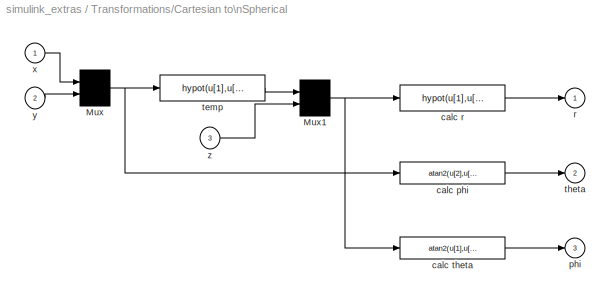
BLOCK [SubSystem] Transformations/Cartesian to\nSpherical
  MaskDescription = Transformation from cartesian to spherical coordinates.\n[x, y, z] -> [r, theta, phi]\n\np = hypot(x,y); r = hypot(p,z);\ntheta = atan(y/x);\nphi = atan(p/z);
  MaskDisplay = plot(0,0,100,100,[45,40,35,40,40],[85,95,85,95,30],[22,10,14,10,40,95,85,95,85],[12,10,20,10,30,30,25,30,35],[70,40],[80,30],[54,52,50,47,44,40],[53,55,56,58,59,59])
  MaskHelp = Unmask this block for more help.
  MaskIconFrame = on
  MaskIconOpaque = on
  MaskIconRotate = none
  MaskIconUnits = autoscale
  MaskType = Cart2Sph
  MinAlgLoopOccurrences = off
  Ports = [3, 3]
  PropExecContextAcrossSSBoundary = on
  RTWSystemCode = Auto
  TreatAsAtomicUnit = off
BLOCK [Mux] Transformations/Cartesian to\nSpherical/Mux
  Inputs = 2
  Ports = [2, 1]
BLOCK [Mux] Transformations/Cartesian to\nSpherical/Mux1
  Inputs = 2
  Ports = [2, 1]
BLOCK [Fcn] Transformations/Cartesian to\nSpherical/calc phi
  Expr = atan2(u[2],u[1])
BLOCK [Fcn] Transformations/Cartesian to\nSpherical/calc r
  Expr = hypot(u[1],u[2])
BLOCK [Fcn] Transformations/Cartesian to\nSpherical/calc theta
  Expr = atan2(u[1],u[2])
BLOCK [Outport] Transformations/Cartesian to\nSpherical/phi
  IconDisplay = Port number
  InitialOutput = 0
  Port = 3
BLOCK [Outport] Transformations/Cartesian to\nSpherical/r 
  IconDisplay = Port number
  InitialOutput = 0
BLOCK [Fcn] Transformations/Cartesian to\nSpherical/temp
  Expr = hypot(u[1],u[2])
BLOCK [Outport] Transformations/Cartesian to\nSpherical/theta
  IconDisplay = Port number
  InitialOutput = 0
  Port = 2
BLOCK [Inport] Transformations/Cartesian to\nSpherical/x
  IconDisplay = Port number
  LatchInput = off
BLOCK [Inport] Transformations/Cartesian to\nSpherical/y
  IconDisplay = Port number
  LatchInput = off
  Port = 2
BLOCK [Inport] Transformations/Cartesian to\nSpherical/z
  IconDisplay = Port number
  LatchInput = off
  Port = 3
BLOCK [SubSystem] Transformations/Celsius to\nFahrenheit
  MaskDescription = Conversion from degrees Celsius to degrees Fahrenheit.\n\nF=9/5*C+32
  MaskDisplay = disp('C2F')
  MaskHelp = This block converts from degrees Celsius to degrees Fahrenheit.
  MaskIconFrame = on
  MaskIconOpaque = on
  MaskIconRotate = none
  MaskIconUnits = autoscale
  MaskType = CelsiusToFahrenheit
  MinAlgLoopOccurrences = off
  Ports = [1, 1]
  PropExecContextAcrossSSBoundary = on
  RTWSystemCode = Auto
  TreatAsAtomicUnit = off
BLOCK [Inport] Transformations/Celsius to\nFahrenheit/Celsius\nin
  IconDisplay = Port number
  LatchInput = off
BLOCK [Constant] Transformations/Celsius to\nFahrenheit/Constant
  OutDataTypeMode = Inherit via back propagation
  Value = 32
BLOCK [Outport] Transformations/Celsius to\nFahrenheit/Fahrenheit\nout
  IconDisplay = Port number
  InitialOutput = 0
BLOCK [Gain] Transformations/Celsius to\nFahrenheit/Gain
  Gain = 9/5
BLOCK [Sum] Transformations/Celsius to\nFahrenheit/Sum
  Ports = [2, 1]
BLOCK [SubSystem] Transformations/Degrees to\nRadians
  MaskDescription = Conversion from Degrees to Radians.\n\nR=pi/180*D
  MaskDisplay = disp('D2R')
  MaskHelp = This block converts from Degrees to Radians.
  MaskIconFrame = on
  MaskIconOpaque = on
  MaskIconRotate = none
  MaskIconUnits = autoscale
  MaskType = DegreesToRadians
  MinAlgLoopOccurrences = off
  Ports = [1, 1]
  PropExecContextAcrossSSBoundary = on
  RTWSystemCode = Auto
  TreatAsAtomicUnit = off
BLOCK [Inport] Transformations/Degrees to\nRadians/Degrees\nin
  IconDisplay = Port number
  LatchInput = off
BLOCK [Gain] Transformations/Degrees to\nRadians/Gain1
  Gain = pi/180
BLOCK [Outport] Transformations/Degrees to\nRadians/Radians\nout
  IconDisplay = Port number
  InitialOutput = 0
BLOCK [SubSystem] Transformations/Fahrenheit\nto Celsius
  MaskDescription = Conversion from degrees Fahrenheit to degrees Celsius.\n\nC=5/9*(F-32);
  MaskDisplay = disp('F2C')
  MaskHelp = This block converts from degrees Fahrenheit to degrees Celsius.
  MaskIconFrame = on
  MaskIconOpaque = on
  MaskIconRotate = none
  MaskIconUnits = autoscale
  MaskType = FahrenheitToCelsius
  MinAlgLoopOccurrences = off
  Ports = [1, 1]
  PropExecContextAcrossSSBoundary = on
  RTWSystemCode = Auto
  TreatAsAtomicUnit = off
BLOCK [Outport] Transformations/Fahrenheit\nto Celsius/Celsius\nout
  IconDisplay = Port number
  InitialOutput = 0
BLOCK [Constant] Transformations/Fahrenheit\nto Celsius/Constant
  OutDataTypeMode = Inherit via back propagation
  Value = 32
BLOCK [Inport] Transformations/Fahrenheit\nto Celsius/Fahrenheit\nin
  IconDisplay = Port number
  LatchInput = off
BLOCK [Gain] Transformations/Fahrenheit\nto Celsius/Gain1
  Gain = 5/9
BLOCK [Sum] Transformations/Fahrenheit\nto Celsius/Sum
  Inputs = +-
  Ports = [2, 1]
BLOCK [SubSystem] Transformations/Polar to\nCartesian
  MaskDescription = Transformation from polar to cartesian coordinates.\n[r, theta] -> [x, y]\n\nx = r * cos(theta);\ny = r * sin(theta);\n
  MaskDisplay = plot(0,0,100,100,[25,20,15,20,20],[85,95,85,95,20],[70,20,95,86,95,85],[60,20,20,15,20,25],[70,70],[45,54],[70,70],[30,40],[70,70],[20,25],[55,65],[60,60],[40,50],[60,60],[25,34],[60,60],[20,21],[60,60],[70,70,68],[57,60,60])
  MaskHelp = Unmask this block for more help.
  MaskIconFrame = on
  MaskIconOpaque = on
  MaskIconRotate = none
  MaskIconUnits = autoscale
  MaskType = Polar2Cart
  MinAlgLoopOccurrences = off
  Ports = [2, 2]
  PropExecContextAcrossSSBoundary = on
  RTWSystemCode = Auto
  TreatAsAtomicUnit = off
BLOCK [Mux] Transformations/Polar to\nCartesian/Mux
  Inputs = 2
  Ports = [2, 1]
BLOCK [Inport] Transformations/Polar to\nCartesian/r 
  IconDisplay = Port number
  LatchInput = off
BLOCK [Fcn] Transformations/Polar to\nCartesian/r->x
  Expr = u[1]*cos(u[2])
BLOCK [Inport] Transformations/Polar to\nCartesian/theta 
  IconDisplay = Port number
  LatchInput = off
  Port = 2
BLOCK [Fcn] Transformations/Polar to\nCartesian/theta->y
  Expr = u[1]*sin(u[2])
BLOCK [Outport] Transformations/Polar to\nCartesian/x
  IconDisplay = Port number
  InitialOutput = 0
BLOCK [Outport] Transformations/Polar to\nCartesian/y
  IconDisplay = Port number
  InitialOutput = 0
  Port = 2
BLOCK [SubSystem] Transformations/Radians\nto Degrees
  MaskDescription = Conversion from Radians to Degrees.\n\nD=180/pi*R
  MaskDisplay = disp('R2D')
  MaskHelp = This block converts from Radians to Degrees.
  MaskIconFrame = on
  MaskIconOpaque = on
  MaskIconRotate = none
  MaskIconUnits = autoscale
  MaskType = RadiansToDegrees
  MinAlgLoopOccurrences = off
  Ports = [1, 1]
  PropExecContextAcrossSSBoundary = on
  RTWSystemCode = Auto
  TreatAsAtomicUnit = off
BLOCK [Outport] Transformations/Radians\nto Degrees/Degrees\nout
  IconDisplay = Port number
  InitialOutput = 0
BLOCK [Gain] Transformations/Radians\nto Degrees/Gain
  Gain = 180/pi
BLOCK [Inport] Transformations/Radians\nto Degrees/Radians\nin
  IconDisplay = Port number
  LatchInput = off
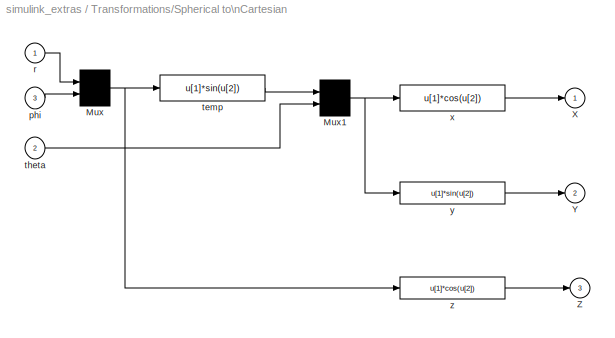
BLOCK [SubSystem] Transformations/Spherical to\nCartesian
  MaskDescription = Transformation from spherical to cartesian coordinates.\n[r, theta, phi] -> [x, y, z]\n\nx = r * sin(phi) * cos(theta);\ny = r * sin(phi) * sin(theta);\nz = r * cos(phi);
  MaskDisplay = plot(0,0,100,100,[45,40,35,40,40],[85,95,85,95,40],[85,95,85,95,40],[35,40,45,40,40],[60,40,10,20,10,14],[70,40,10,13,10,20],[56,45],[70,70],[60,60],[50,60],[60,60],[30,40],[50,60],[20,20],[30,40],[20,20],[45,55],[35,25],[75,65],[35,25])
  MaskHelp = Unmask this block for more help.
  MaskIconFrame = on
  MaskIconOpaque = on
  MaskIconRotate = none
  MaskIconUnits = autoscale
  MaskType = Sph2Cart
  MinAlgLoopOccurrences = off
  Ports = [3, 3]
  PropExecContextAcrossSSBoundary = on
  RTWSystemCode = Auto
  TreatAsAtomicUnit = off
BLOCK [Mux] Transformations/Spherical to\nCartesian/Mux
  Inputs = 2
  Ports = [2, 1]
BLOCK [Mux] Transformations/Spherical to\nCartesian/Mux1
  Inputs = 2
  Ports = [2, 1]
BLOCK [Outport] Transformations/Spherical to\nCartesian/X
  IconDisplay = Port number
  InitialOutput = 0
BLOCK [Outport] Transformations/Spherical to\nCartesian/Y
  IconDisplay = Port number
  InitialOutput = 0
  Port = 2
BLOCK [Outport] Transformations/Spherical to\nCartesian/Z
  IconDisplay = Port number
  InitialOutput = 0
  Port = 3
BLOCK [Inport] Transformations/Spherical to\nCartesian/phi
  IconDisplay = Port number
  LatchInput = off
  Port = 3
BLOCK [Inport] Transformations/Spherical to\nCartesian/r
  IconDisplay = Port number
  LatchInput = off
BLOCK [Fcn] Transformations/Spherical to\nCartesian/temp
  Expr = u[1]*sin(u[2])
BLOCK [Inport] Transformations/Spherical to\nCartesian/theta
  IconDisplay = Port number
  LatchInput = off
  Port = 2
BLOCK [Fcn] Transformations/Spherical to\nCartesian/x
  Expr = u[1]*cos(u[2])
BLOCK [Fcn] Transformations/Spherical to\nCartesian/y
  Expr = u[1]*sin(u[2])
BLOCK [Fcn] Transformations/Spherical to\nCartesian/z
  Expr = u[1]*cos(u[2])
ANNOTATION Flip Flops: Note: J-K Flip-Flop is Negative-Edge-Triggered
ANNOTATION Linearization: Block for use with linmod:
LINE Additional\nDiscrete/Discrete\nTransfer Fcn\n(with initial outputs)/Discrete\nState Space:1 -> Additional\nDiscrete/Discrete\nTransfer Fcn\n(with initial outputs)/Out1:1
LINE Additional\nDiscrete/Discrete\nTransfer Fcn\n(with initial outputs)/In1:1 -> Additional\nDiscrete/Discrete\nTransfer Fcn\n(with initial outputs)/Discrete\nState Space:1
LINE Additional\nDiscrete/Discrete\nTransfer Fcn\n(with initial states)/Discrete\nState Space:1 -> Additional\nDiscrete/Discrete\nTransfer Fcn\n(with initial states)/Out1:1
LINE Additional\nDiscrete/Discrete\nTransfer Fcn\n(with initial states)/In1:1 -> Additional\nDiscrete/Discrete\nTransfer Fcn\n(with initial states)/Discrete\nState Space:1
LINE Additional\nDiscrete/Discrete\nZero-Pole\n(with initial outputs)/Discrete\nState Space:1 -> Additional\nDiscrete/Discrete\nZero-Pole\n(with initial outputs)/Out1:1
LINE Additional\nDiscrete/Discrete\nZero-Pole\n(with initial outputs)/In1:1 -> Additional\nDiscrete/Discrete\nZero-Pole\n(with initial outputs)/Discrete\nState Space:1
LINE Additional\nDiscrete/Discrete\nZero-Pole\n(with initial states)/Discrete\nState Space:1 -> Additional\nDiscrete/Discrete\nZero-Pole\n(with initial states)/Out1:1
LINE Additional\nDiscrete/Discrete\nZero-Pole\n(with initial states)/In1:1 -> Additional\nDiscrete/Discrete\nZero-Pole\n(with initial states)/Discrete\nState Space:1
LINE Additional\nDiscrete/Idealized ADC quantizer/Bias:1 -> Additional\nDiscrete/Idealized ADC quantizer/Gain:1
LINE Additional\nDiscrete/Idealized ADC quantizer/Gain:1 -> Additional\nDiscrete/Idealized ADC quantizer/SetRound:1
LINE Additional\nDiscrete/Idealized ADC quantizer/Sampled\nVolts:1 -> Additional\nDiscrete/Idealized ADC quantizer/Saturate volts \nto output range:1
LINE Additional\nDiscrete/Idealized ADC quantizer/Saturate volts \nto output range:1 -> Additional\nDiscrete/Idealized ADC quantizer/Bias:1
LINE Additional\nDiscrete/Idealized ADC quantizer/SetRound:1 -> Additional\nDiscrete/Idealized ADC quantizer/floor:1
LINE Additional\nDiscrete/Idealized ADC quantizer/ZeroBias:1 -> Additional\nDiscrete/Idealized ADC quantizer/Digital\nCounts:1
LINE Additional\nDiscrete/Idealized ADC quantizer/cast:1 -> Additional\nDiscrete/Idealized ADC quantizer/ZeroBias:1
LINE Additional\nDiscrete/Idealized ADC quantizer/floor:1 -> Additional\nDiscrete/Idealized ADC quantizer/cast:1
LINE Additional\nLinear/PID Controller/D:1 -> Additional\nLinear/PID Controller/Derivative:1
LINE Additional\nLinear/PID Controller/Derivative:1 -> Additional\nLinear/PID Controller/Sum:3
NET Additional\nLinear/PID Controller/In_1:1 -> Additional\nLinear/PID Controller/D:1, Additional\nLinear/PID Controller/Integral:1, Additional\nLinear/PID Controller/Proportional:1
LINE Additional\nLinear/PID Controller/Integral:1 -> Additional\nLinear/PID Controller/Sum:2
LINE Additional\nLinear/PID Controller/Proportional:1 -> Additional\nLinear/PID Controller/Sum:1
LINE Additional\nLinear/PID Controller/Sum:1 -> Additional\nLinear/PID Controller/Out_1:1
LINE Additional\nLinear/PID Controller\n(with Approximate\nDerivative)/Derivative:1 -> Additional\nLinear/PID Controller\n(with Approximate\nDerivative)/Sum:3
NET Additional\nLinear/PID Controller\n(with Approximate\nDerivative)/In_1:1 -> Additional\nLinear/PID Controller\n(with Approximate\nDerivative)/Derivative:1, Additional\nLinear/PID Controller\n(with Approximate\nDerivative)/Integral:1, Additional\nLinear/PID Controller\n(with Approximate\nDerivative)/Proportional:1
LINE Additional\nLinear/PID Controller\n(with Approximate\nDerivative)/Integral:1 -> Additional\nLinear/PID Controller\n(with Approximate\nDerivative)/Sum:2
LINE Additional\nLinear/PID Controller\n(with Approximate\nDerivative)/Proportional:1 -> Additional\nLinear/PID Controller\n(with Approximate\nDerivative)/Sum:1
LINE Additional\nLinear/PID Controller\n(with Approximate\nDerivative)/Sum:1 -> Additional\nLinear/PID Controller\n(with Approximate\nDerivative)/Out_1:1
LINE Additional\nLinear/State-Space\n(with initial outputs)/In1:1 -> Additional\nLinear/State-Space\n(with initial outputs)/State-Space:1
LINE Additional\nLinear/State-Space\n(with initial outputs)/State-Space:1 -> Additional\nLinear/State-Space\n(with initial outputs)/Out1:1
LINE Additional\nLinear/Transfer Fcn\n(with initial outputs)/In1:1 -> Additional\nLinear/Transfer Fcn\n(with initial outputs)/State Space:1
LINE Additional\nLinear/Transfer Fcn\n(with initial outputs)/State Space:1 -> Additional\nLinear/Transfer Fcn\n(with initial outputs)/Out1:1
LINE Additional\nLinear/Transfer Fcn\n(with initial states)/In1:1 -> Additional\nLinear/Transfer Fcn\n(with initial states)/State Space:1
LINE Additional\nLinear/Transfer Fcn\n(with initial states)/State Space:1 -> Additional\nLinear/Transfer Fcn\n(with initial states)/Out1:1
LINE Additional\nLinear/Zero-Pole\n(with initial outputs)/In1:1 -> Additional\nLinear/Zero-Pole\n(with initial outputs)/State Space:1
LINE Additional\nLinear/Zero-Pole\n(with initial outputs)/State Space:1 -> Additional\nLinear/Zero-Pole\n(with initial outputs)/Out1:1
LINE Additional\nLinear/Zero-Pole\n(with initial states)/In1:1 -> Additional\nLinear/Zero-Pole\n(with initial states)/State Space:1
LINE Additional\nLinear/Zero-Pole\n(with initial states)/State Space:1 -> Additional\nLinear/Zero-Pole\n(with initial states)/Out1:1
LINE Additional\nSinks/Auto\nCorrelator/input signal:1 -> Additional\nSinks/Auto\nCorrelator/sfuncorr:1
LINE Additional\nSinks/Averaging\nPower Spectral\nDensity/input signal:1 -> Additional\nSinks/Averaging\nPower Spectral\nDensity/sfunpsd:1
LINE Additional\nSinks/Averaging\nSpectrum\nAnalyzer/Mux:1 -> Additional\nSinks/Averaging\nSpectrum\nAnalyzer/sfuntf:1
LINE Additional\nSinks/Averaging\nSpectrum\nAnalyzer/system input:1 -> Additional\nSinks/Averaging\nSpectrum\nAnalyzer/Mux:1
LINE Additional\nSinks/Averaging\nSpectrum\nAnalyzer/system output:1 -> Additional\nSinks/Averaging\nSpectrum\nAnalyzer/Mux:2
LINE Additional\nSinks/Cross\nCorrelator/Mux:1 -> Additional\nSinks/Cross\nCorrelator/sfuncorr:1
LINE Additional\nSinks/Cross\nCorrelator/signal 1:1 -> Additional\nSinks/Cross\nCorrelator/Mux:1
LINE Additional\nSinks/Cross\nCorrelator/signal 2:1 -> Additional\nSinks/Cross\nCorrelator/Mux:2
LINE Additional\nSinks/Power Spectral\nDensity/input signal:1 -> Additional\nSinks/Power Spectral\nDensity/sfunpsd:1
LINE Additional\nSinks/Spectrum\nAnalyzer/Mux:1 -> Additional\nSinks/Spectrum\nAnalyzer/sfuntf:1
LINE Additional\nSinks/Spectrum\nAnalyzer/system input:1 -> Additional\nSinks/Spectrum\nAnalyzer/Mux:1
LINE Additional\nSinks/Spectrum\nAnalyzer/system output:1 -> Additional\nSinks/Spectrum\nAnalyzer/Mux:2
LINE Flip Flops/Clock/Constant:1 -> Flip Flops/Clock/Sum:1
NET Flip Flops/Clock/Sum:1 -> Flip Flops/Clock/Unit Delay:1, Flip Flops/Clock/out_1:1
LINE Flip Flops/Clock/Unit Delay:1 -> Flip Flops/Clock/Sum:2
LINE Flip Flops/D Flip-Flop/!CLR:1 -> Flip Flops/D Flip-Flop/D Flip-Flop:enable
LINE Flip Flops/D Flip-Flop/CLK:1 -> Flip Flops/D Flip-Flop/D Flip-Flop:trigger
NET Flip Flops/D Flip-Flop/D Flip-Flop/D:1 -> Flip Flops/D Flip-Flop/D Flip-Flop/Logic:1, Flip Flops/D Flip-Flop/D Flip-Flop/Q:1
LINE Flip Flops/D Flip-Flop/D Flip-Flop/Logic:1 -> Flip Flops/D Flip-Flop/D Flip-Flop/!Q:1
LINE Flip Flops/D Flip-Flop/D Flip-Flop:1 -> Flip Flops/D Flip-Flop/Q:1
LINE Flip Flops/D Flip-Flop/D Flip-Flop:2 -> Flip Flops/D Flip-Flop/!Q:1
LINE Flip Flops/D Flip-Flop/D:1 -> Flip Flops/D Flip-Flop/D Flip-Flop:1
LINE Flip Flops/D Latch/C:1 -> Flip Flops/D Latch/D Latch:enable
NET Flip Flops/D Latch/D Latch/D:1 -> Flip Flops/D Latch/D Latch/Logic:1, Flip Flops/D Latch/D Latch/Q:1
LINE Flip Flops/D Latch/D Latch/Logic:1 -> Flip Flops/D Latch/D Latch/!Q:1
LINE Flip Flops/D Latch/D Latch:1 -> Flip Flops/D Latch/Q:1
LINE Flip Flops/D Latch/D Latch:2 -> Flip Flops/D Latch/!Q:1
LINE Flip Flops/D Latch/D:1 -> Flip Flops/D Latch/D Latch:1
LINE Flip Flops/J-K\nFlip-Flop/CLK:1 -> Flip Flops/J-K\nFlip-Flop/J-K\nFlip-Flop:trigger
NET Flip Flops/J-K\nFlip-Flop/J-K\nFlip-Flop/Demux:1 -> Flip Flops/J-K\nFlip-Flop/J-K\nFlip-Flop/Memory:1, Flip Flops/J-K\nFlip-Flop/J-K\nFlip-Flop/Q:1
LINE Flip Flops/J-K\nFlip-Flop/J-K\nFlip-Flop/Demux:2 -> Flip Flops/J-K\nFlip-Flop/J-K\nFlip-Flop/!Q:1
LINE Flip Flops/J-K\nFlip-Flop/J-K\nFlip-Flop/J:1 -> Flip Flops/J-K\nFlip-Flop/J-K\nFlip-Flop/Mux:2
LINE Flip Flops/J-K\nFlip-Flop/J-K\nFlip-Flop/K:1 -> Flip Flops/J-K\nFlip-Flop/J-K\nFlip-Flop/Mux:3
LINE Flip Flops/J-K\nFlip-Flop/J-K\nFlip-Flop/Logic:1 -> Flip Flops/J-K\nFlip-Flop/J-K\nFlip-Flop/Demux:1
LINE Flip Flops/J-K\nFlip-Flop/J-K\nFlip-Flop/Memory:1 -> Flip Flops/J-K\nFlip-Flop/J-K\nFlip-Flop/Mux:1
LINE Flip Flops/J-K\nFlip-Flop/J-K\nFlip-Flop/Mux:1 -> Flip Flops/J-K\nFlip-Flop/J-K\nFlip-Flop/Logic:1
LINE Flip Flops/J-K\nFlip-Flop/J-K\nFlip-Flop:1 -> Flip Flops/J-K\nFlip-Flop/Q:1
LINE Flip Flops/J-K\nFlip-Flop/J-K\nFlip-Flop:2 -> Flip Flops/J-K\nFlip-Flop/!Q:1
LINE Flip Flops/J-K\nFlip-Flop/J:1 -> Flip Flops/J-K\nFlip-Flop/J-K\nFlip-Flop:1
LINE Flip Flops/J-K\nFlip-Flop/K:1 -> Flip Flops/J-K\nFlip-Flop/J-K\nFlip-Flop:2
NET Flip Flops/S-R\nFlip-Flop/Demux:1 -> Flip Flops/S-R\nFlip-Flop/Memory:1, Flip Flops/S-R\nFlip-Flop/Q:1
LINE Flip Flops/S-R\nFlip-Flop/Demux:2 -> Flip Flops/S-R\nFlip-Flop/!Q:1
LINE Flip Flops/S-R\nFlip-Flop/Logic:1 -> Flip Flops/S-R\nFlip-Flop/Demux:1
LINE Flip Flops/S-R\nFlip-Flop/Memory:1 -> Flip Flops/S-R\nFlip-Flop/Mux:3
LINE Flip Flops/S-R\nFlip-Flop/Mux:1 -> Flip Flops/S-R\nFlip-Flop/Logic:1
LINE Flip Flops/S-R\nFlip-Flop/R:1 -> Flip Flops/S-R\nFlip-Flop/Mux:2
LINE Flip Flops/S-R\nFlip-Flop/S:1 -> Flip Flops/S-R\nFlip-Flop/Mux:1
LINE Linearization/Switched\nderivative for\nlinearization/Derivative:1 -> Linearization/Switched\nderivative for\nlinearization/Sum:2
NET Linearization/Switched\nderivative for\nlinearization/In1:1 -> Linearization/Switched\nderivative for\nlinearization/Switch:1, Linearization/Switched\nderivative for\nlinearization/~ switch:1
LINE Linearization/Switched\nderivative for\nlinearization/Sum:1 -> Linearization/Switched\nderivative for\nlinearization/Out1:1
LINE Linearization/Switched\nderivative for\nlinearization/Switch:1 -> Linearization/Switched\nderivative for\nlinearization/Transfer function\napproximation:1
LINE Linearization/Switched\nderivative for\nlinearization/Transfer function\napproximation:1 -> Linearization/Switched\nderivative for\nlinearization/Sum:1
LINE Linearization/Switched\nderivative for\nlinearization/~ switch:1 -> Linearization/Switched\nderivative for\nlinearization/Derivative:1
NET Transformations/Cartesian to\nPolar/Mux:1 -> Transformations/Cartesian to\nPolar/x->r:1, Transformations/Cartesian to\nPolar/x->theta:1
LINE Transformations/Cartesian to\nPolar/x->r:1 -> Transformations/Cartesian to\nPolar/r:1
LINE Transformations/Cartesian to\nPolar/x->theta:1 -> Transformations/Cartesian to\nPolar/theta:1
LINE Transformations/Cartesian to\nPolar/x:1 -> Transformations/Cartesian to\nPolar/Mux:1
LINE Transformations/Cartesian to\nPolar/y:1 -> Transformations/Cartesian to\nPolar/Mux:2
NET Transformations/Cartesian to\nSpherical/Mux1:1 -> Transformations/Cartesian to\nSpherical/calc r:1, Transformations/Cartesian to\nSpherical/calc theta:1
NET Transformations/Cartesian to\nSpherical/Mux:1 -> Transformations/Cartesian to\nSpherical/calc phi:1, Transformations/Cartesian to\nSpherical/temp:1
LINE Transformations/Cartesian to\nSpherical/calc phi:1 -> Transformations/Cartesian to\nSpherical/theta:1
LINE Transformations/Cartesian to\nSpherical/calc r:1 -> Transformations/Cartesian to\nSpherical/r :1
LINE Transformations/Cartesian to\nSpherical/calc theta:1 -> Transformations/Cartesian to\nSpherical/phi:1
LINE Transformations/Cartesian to\nSpherical/temp:1 -> Transformations/Cartesian to\nSpherical/Mux1:1
LINE Transformations/Cartesian to\nSpherical/x:1 -> Transformations/Cartesian to\nSpherical/Mux:1
LINE Transformations/Cartesian to\nSpherical/y:1 -> Transformations/Cartesian to\nSpherical/Mux:2
LINE Transformations/Cartesian to\nSpherical/z:1 -> Transformations/Cartesian to\nSpherical/Mux1:2
LINE Transformations/Celsius to\nFahrenheit/Celsius\nin:1 -> Transformations/Celsius to\nFahrenheit/Gain:1
LINE Transformations/Celsius to\nFahrenheit/Constant:1 -> Transformations/Celsius to\nFahrenheit/Sum:2
LINE Transformations/Celsius to\nFahrenheit/Gain:1 -> Transformations/Celsius to\nFahrenheit/Sum:1
LINE Transformations/Celsius to\nFahrenheit/Sum:1 -> Transformations/Celsius to\nFahrenheit/Fahrenheit\nout:1
LINE Transformations/Degrees to\nRadians/Degrees\nin:1 -> Transformations/Degrees to\nRadians/Gain1:1
LINE Transformations/Degrees to\nRadians/Gain1:1 -> Transformations/Degrees to\nRadians/Radians\nout:1
LINE Transformations/Fahrenheit\nto Celsius/Constant:1 -> Transformations/Fahrenheit\nto Celsius/Sum:2
LINE Transformations/Fahrenheit\nto Celsius/Fahrenheit\nin:1 -> Transformations/Fahrenheit\nto Celsius/Sum:1
LINE Transformations/Fahrenheit\nto Celsius/Gain1:1 -> Transformations/Fahrenheit\nto Celsius/Celsius\nout:1
LINE Transformations/Fahrenheit\nto Celsius/Sum:1 -> Transformations/Fahrenheit\nto Celsius/Gain1:1
NET Transformations/Polar to\nCartesian/Mux:1 -> Transformations/Polar to\nCartesian/r->x:1, Transformations/Polar to\nCartesian/theta->y:1
LINE Transformations/Polar to\nCartesian/r :1 -> Transformations/Polar to\nCartesian/Mux:1
LINE Transformations/Polar to\nCartesian/r->x:1 -> Transformations/Polar to\nCartesian/x:1
LINE Transformations/Polar to\nCartesian/theta :1 -> Transformations/Polar to\nCartesian/Mux:2
LINE Transformations/Polar to\nCartesian/theta->y:1 -> Transformations/Polar to\nCartesian/y:1
LINE Transformations/Radians\nto Degrees/Gain:1 -> Transformations/Radians\nto Degrees/Degrees\nout:1
LINE Transformations/Radians\nto Degrees/Radians\nin:1 -> Transformations/Radians\nto Degrees/Gain:1
NET Transformations/Spherical to\nCartesian/Mux1:1 -> Transformations/Spherical to\nCartesian/x:1, Transformations/Spherical to\nCartesian/y:1
NET Transformations/Spherical to\nCartesian/Mux:1 -> Transformations/Spherical to\nCartesian/temp:1, Transformations/Spherical to\nCartesian/z:1
LINE Transformations/Spherical to\nCartesian/phi:1 -> Transformations/Spherical to\nCartesian/Mux:2
LINE Transformations/Spherical to\nCartesian/r:1 -> Transformations/Spherical to\nCartesian/Mux:1
LINE Transformations/Spherical to\nCartesian/temp:1 -> Transformations/Spherical to\nCartesian/Mux1:1
LINE Transformations/Spherical to\nCartesian/theta:1 -> Transformations/Spherical to\nCartesian/Mux1:2
LINE Transformations/Spherical to\nCartesian/x:1 -> Transformations/Spherical to\nCartesian/X:1
LINE Transformations/Spherical to\nCartesian/y:1 -> Transformations/Spherical to\nCartesian/Y:1
LINE Transformations/Spherical to\nCartesian/z:1 -> Transformations/Spherical to\nCartesian/Z:1
note: NET lines group one-source signal fan-out (src -> all destinations, sorted); 1:1 wires keep LINE
